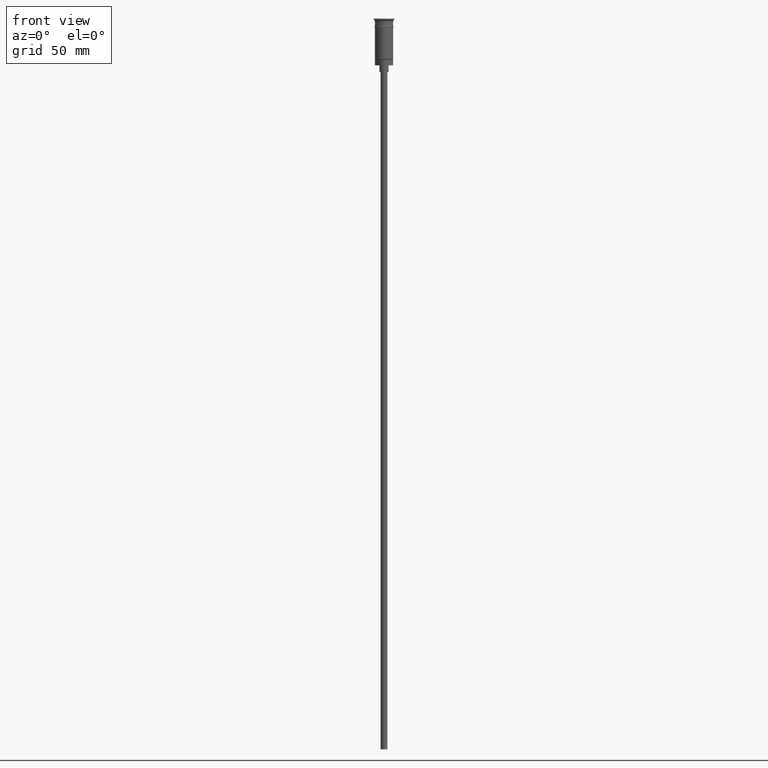
[diagram: clean part render]
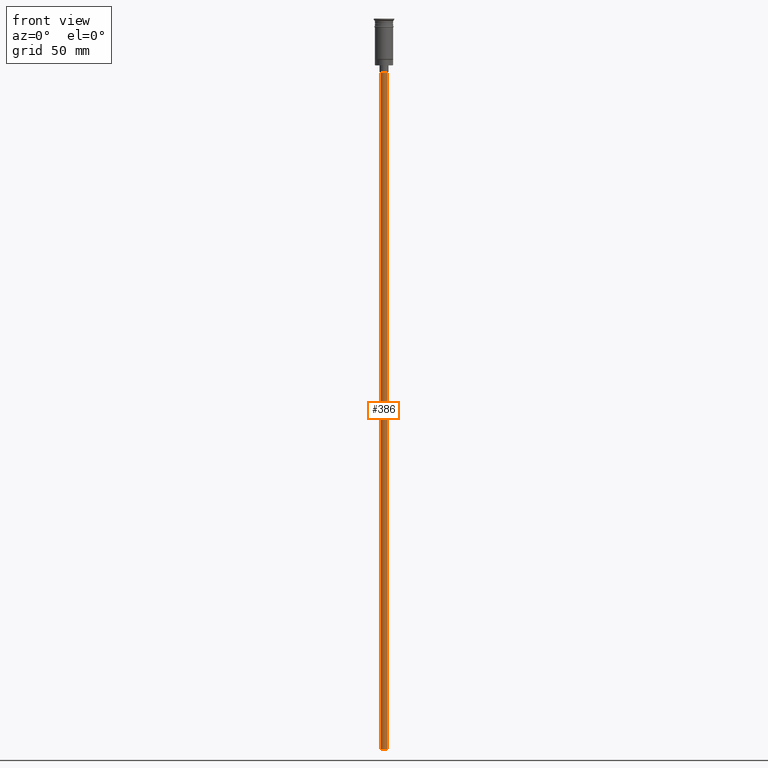
[diagram: same view with one face highlighted and labeled with its STEP entity id]
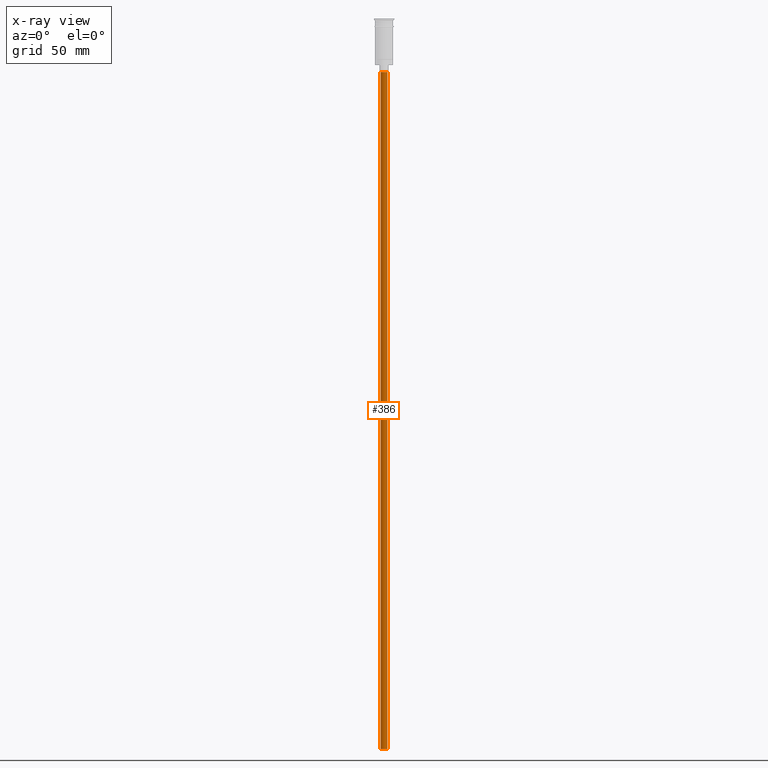
[diagram: x-ray of the same camera — body ghosted, the highlighted face saturated]
A machine part, front view. The second image highlights one B-rep face of the part: STEP entity #386.
The next image is the same camera in x-ray: the body ghosted, the highlighted face saturated — about 0% of this face is hidden behind the body in this view.
In plain terms, the highlighted cylindrical surface (edge-blend (fillet) strip) has radius 1.5 mm, axis along (-0, -0, 1).
Its self-contained STEP definition (entity closure, byte-faithful):
#3 = DIRECTION ( 'NONE',  ( 1.000000000000000000, 0.000000000000000000, 0.000000000000000000 ) ) ;
#29 = CARTESIAN_POINT ( 'NONE',  ( -1.500000000000000222, 1.836970198721030181E-16, -320.5000000000000000 ) ) ;
#61 = LINE ( 'NONE', #442, #183 ) ;
#115 = VERTEX_POINT ( 'NONE', #29 ) ;
#125 = CYLINDRICAL_SURFACE ( 'NONE', #562, 1.500000000000000222 ) ;
#133 = VERTEX_POINT ( 'NONE', #1150 ) ;
#154 = EDGE_CURVE ( 'NONE', #115, #1472, #1405, .T. ) ;
#183 = VECTOR ( 'NONE', #567, 1000.000000000000000 ) ;
#200 = EDGE_LOOP ( 'NONE', ( #984, #353, #318, #833 ) ) ;
#216 = EDGE_CURVE ( 'NONE', #751, #1472, #481, .T. ) ;
#229 = DIRECTION ( 'NONE',  ( -1.000000000000000000, 0.000000000000000000, 0.000000000000000000 ) ) ;
#293 = DIRECTION ( 'NONE',  ( -1.000000000000000000, 0.000000000000000000, 0.000000000000000000 ) ) ;
#299 = DIRECTION ( 'NONE',  ( -0.000000000000000000, -0.000000000000000000, 1.000000000000000000 ) ) ;
#318 = ORIENTED_EDGE ( 'NONE', *, *, #1288, .T. ) ;
#353 = ORIENTED_EDGE ( 'NONE', *, *, #436, .F. ) ;
#386 = ADVANCED_FACE ( 'NONE', ( #735 ), #125, .T. ) ;
#436 = EDGE_CURVE ( 'NONE', #133, #115, #1323, .T. ) ;
#442 = CARTESIAN_POINT ( 'NONE',  ( 1.500000000000000222, 0.000000000000000000, -320.5000000000000000 ) ) ;
#481 = CIRCLE ( 'NONE', #843, 1.500000000000000222 ) ;
#562 = AXIS2_PLACEMENT_3D ( 'NONE', #1112, #626, #3 ) ;
#567 = DIRECTION ( 'NONE',  ( -0.000000000000000000, -0.000000000000000000, 1.000000000000000000 ) ) ;
#576 = DIRECTION ( 'NONE',  ( 0.000000000000000000, 0.000000000000000000, -1.000000000000000000 ) ) ;
#626 = DIRECTION ( 'NONE',  ( -0.000000000000000000, -0.000000000000000000, 1.000000000000000000 ) ) ;
#660 = CARTESIAN_POINT ( 'NONE',  ( -1.500000000000000222, 1.836970198721030181E-16, -23.49999999999999645 ) ) ;
#735 = FACE_OUTER_BOUND ( 'NONE', #200, .T. ) ;
#751 = VERTEX_POINT ( 'NONE', #1148 ) ;
#784 = CARTESIAN_POINT ( 'NONE',  ( 0.000000000000000000, 0.000000000000000000, -320.5000000000000000 ) ) ;
#813 = VECTOR ( 'NONE', #299, 1000.000000000000000 ) ;
#833 = ORIENTED_EDGE ( 'NONE', *, *, #216, .T. ) ;
#843 = AXIS2_PLACEMENT_3D ( 'NONE', #1312, #576, #229 ) ;
#984 = ORIENTED_EDGE ( 'NONE', *, *, #154, .F. ) ;
#1112 = CARTESIAN_POINT ( 'NONE',  ( 0.000000000000000000, 0.000000000000000000, -320.5000000000000000 ) ) ;
#1148 = CARTESIAN_POINT ( 'NONE',  ( 1.500000000000000222, 0.000000000000000000, -23.49999999999999645 ) ) ;
#1150 = CARTESIAN_POINT ( 'NONE',  ( 1.500000000000000222, 0.000000000000000000, -320.5000000000000000 ) ) ;
#1155 = AXIS2_PLACEMENT_3D ( 'NONE', #784, #1519, #293 ) ;
#1288 = EDGE_CURVE ( 'NONE', #133, #751, #61, .T. ) ;
#1312 = CARTESIAN_POINT ( 'NONE',  ( 0.000000000000000000, 0.000000000000000000, -23.49999999999999645 ) ) ;
#1323 = CIRCLE ( 'NONE', #1155, 1.500000000000000222 ) ;
#1405 = LINE ( 'NONE', #1510, #813 ) ;
#1472 = VERTEX_POINT ( 'NONE', #660 ) ;
#1510 = CARTESIAN_POINT ( 'NONE',  ( -1.500000000000000222, 1.836970198721030181E-16, -320.5000000000000000 ) ) ;
#1519 = DIRECTION ( 'NONE',  ( 0.000000000000000000, 0.000000000000000000, -1.000000000000000000 ) ) ;